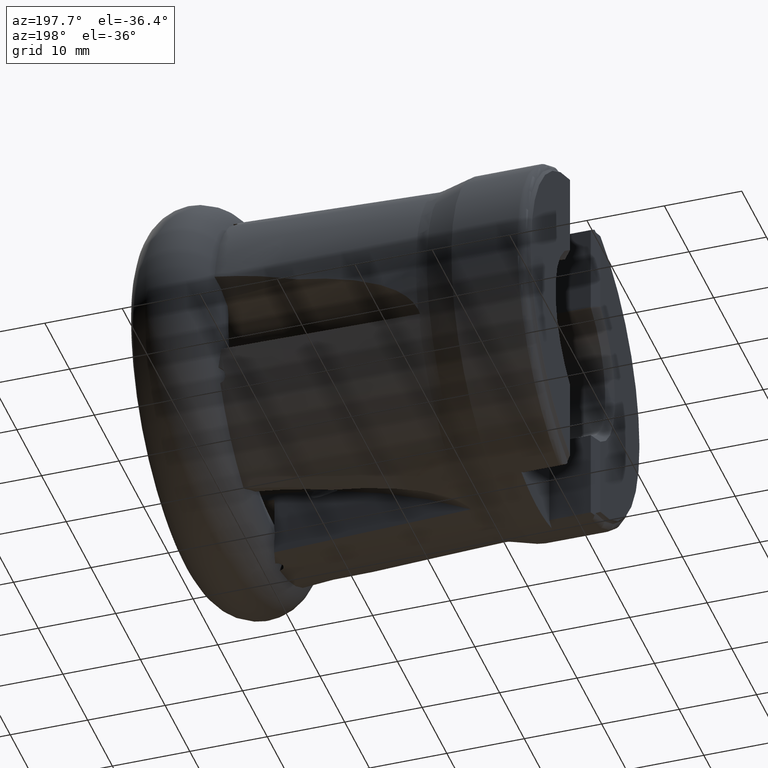
[diagram: clean part render]
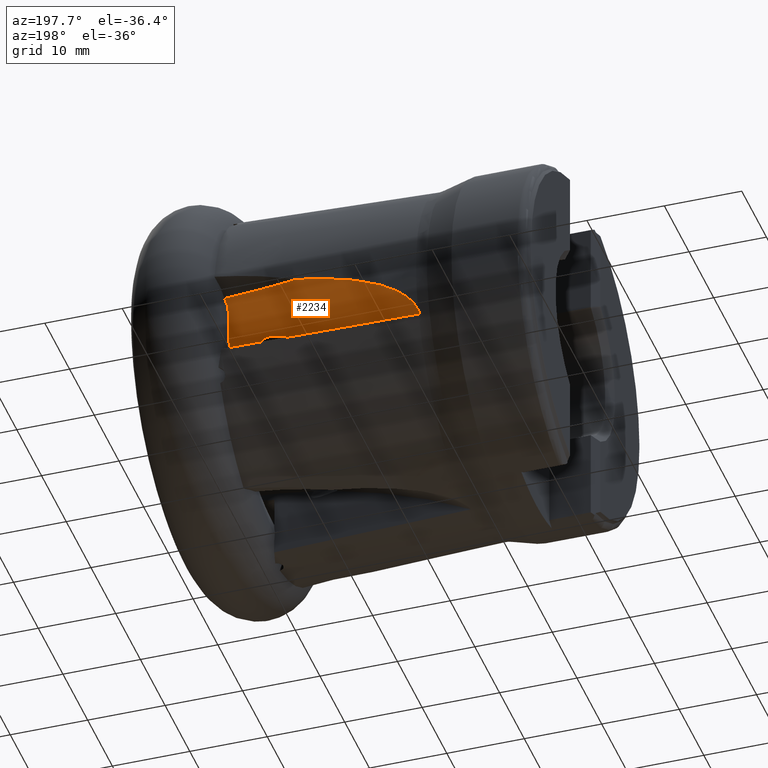
[diagram: same view with one face highlighted and labeled with its STEP entity id]
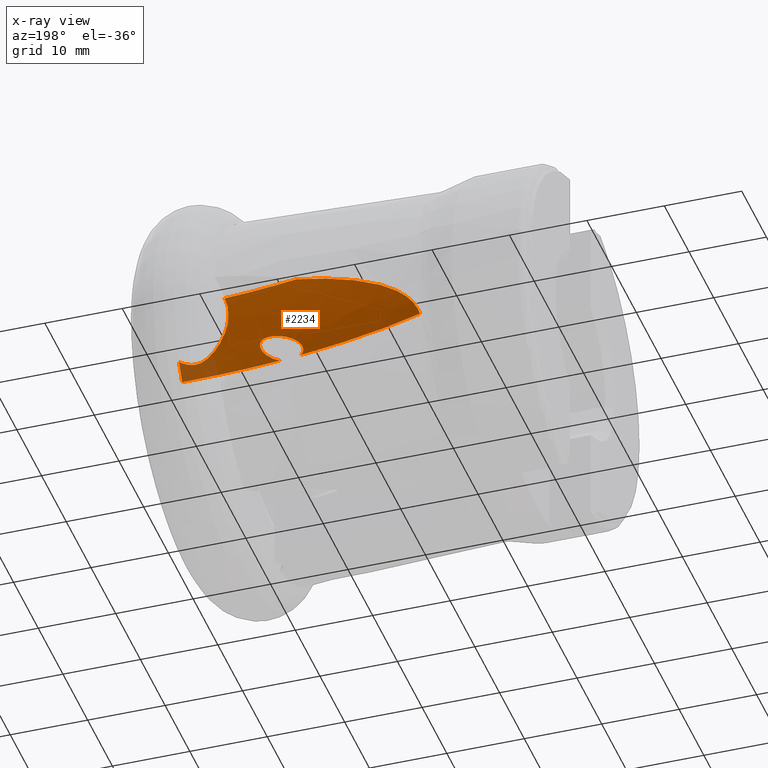
[diagram: x-ray of the same camera — body ghosted, the highlighted face saturated]
A machine part, auxiliary view. The second image highlights one B-rep face of the part: STEP entity #2234.
The next image is the same camera in x-ray: the body ghosted, the highlighted face saturated — about 5% of this face is hidden behind the body in this view.
In plain terms, the highlighted face is a freeform B-spline surface patch.
Its self-contained STEP definition (entity closure, byte-faithful):
#57 = CARTESIAN_POINT ( 'NONE',  ( -10.67007373565100000, 19.98910982754507900, 1.701410772171525500 ) ) ;
#67 = CARTESIAN_POINT ( 'NONE',  ( -35.45456745648343100, 21.29226190142590300, -5.208413239256000100 ) ) ;
#70 = CARTESIAN_POINT ( 'NONE',  ( -35.01043176952922000, 24.65249547855372100, -1.247400818912317600 ) ) ;
#76 = CARTESIAN_POINT ( 'NONE',  ( -10.61263477070060400, 20.52451081914086800, 1.808598483821061100 ) ) ;
#98 = CIRCLE ( 'NONE', #299, 66.95920184201828800 ) ;
#99 = CARTESIAN_POINT ( 'NONE',  ( -2.294855702049722400, 20.13733992812004900, 1.934397932121777000 ) ) ;
#113 = CARTESIAN_POINT ( 'NONE',  ( -16.94207837571960000, 15.61148404056344500, -2.006880949615248400 ) ) ;
#128 = CARTESIAN_POINT ( 'NONE',  ( -13.24486891621791100, 19.94529112346302900, 1.996798371392830300 ) ) ;
#131 = CARTESIAN_POINT ( 'NONE',  ( -13.43528544466133900, 14.99059599604103500, -1.840202598969330200 ) ) ;
#157 = CARTESIAN_POINT ( 'NONE',  ( -35.63093086630230700, 21.20886142417053600, -5.516403857878856300 ) ) ;
#222 = CARTESIAN_POINT ( 'NONE',  ( -2.483685759257711700, 12.89898074285816200, -3.886208859654658000 ) ) ;
#244 = VERTEX_POINT ( 'NONE', #861 ) ;
#299 = AXIS2_PLACEMENT_3D ( 'NONE', #4890, #4896, #4902 ) ;
#415 = B_SPLINE_CURVE_WITH_KNOTS ( 'NONE', 3,
 ( #3560, #3616, #3347, #3365 ),
 .UNSPECIFIED., .F., .F.,
 ( 4, 4 ),
 ( 4.336808689942017700E-019, 0.002535682516832130100 ),
 .UNSPECIFIED. ) ;
#438 = CARTESIAN_POINT ( 'NONE',  ( -15.71470477606490900, 13.97244937755415300, -4.234999962355638900 ) ) ;
#452 = CARTESIAN_POINT ( 'NONE',  ( -32.25690373819281100, 21.90576804327069000, -2.339785934406215100 ) ) ;
#482 = EDGE_CURVE ( 'NONE', #637, #1880, #2284, .T. ) ;
#497 = CARTESIAN_POINT ( 'NONE',  ( -17.97723554452310100, 15.46299320940926800, -2.545216703589392900 ) ) ;
#507 = CARTESIAN_POINT ( 'NONE',  ( -13.96482074167198400, 15.34781528938819200, -1.538061025068852900 ) ) ;
#637 = VERTEX_POINT ( 'NONE', #3209 ) ;
#688 = EDGE_CURVE ( 'NONE', #244, #824, #2191, .T. ) ;
#808 = CARTESIAN_POINT ( 'NONE',  ( -27.60267428762364300, 22.19046200048281400, -0.3420937926960605500 ) ) ;
#816 = CARTESIAN_POINT ( 'NONE',  ( -14.28615549429026300, 14.09191446535606900, -3.420416888686507800 ) ) ;
#824 = VERTEX_POINT ( 'NONE', #3171 ) ;
#853 = CARTESIAN_POINT ( 'NONE',  ( -32.57035810515052500, 21.87395444207135500, -2.528645976481762100 ) ) ;
#861 = CARTESIAN_POINT ( 'NONE',  ( -15.71470477606490900, 13.97244937755415300, -4.234999962355638900 ) ) ;
#866 = CARTESIAN_POINT ( 'NONE',  ( -18.43953404367519500, 15.34025000464639600, -2.898242365660210800 ) ) ;
#878 = CARTESIAN_POINT ( 'NONE',  ( -16.04333051825046800, 15.64170299876388800, -1.716189478441777900 ) ) ;
#1065 = CARTESIAN_POINT ( 'NONE',  ( -20.49648691346577300, 22.40840203661655700, 1.196485121702988600 ) ) ;
#1096 = CARTESIAN_POINT ( 'NONE',  ( -2.692034791123087500, 14.19776985816529400, -1.703903329132488300 ) ) ;
#1099 = CARTESIAN_POINT ( 'NONE',  ( -34.04904509011237200, 21.68126116710615700, -3.571649673112335500 ) ) ;
#1139 = CARTESIAN_POINT ( 'NONE',  ( -23.37206174434269500, 22.33016160396562500, 0.7358011302123138600 ) ) ;
#1185 = CARTESIAN_POINT ( 'NONE',  ( -31.29727425323967800, 21.98868589399752000, -1.818080117048803200 ) ) ;
#1229 = CARTESIAN_POINT ( 'NONE',  ( -13.37292321132269600, 14.69451746052368100, -2.208757829550291400 ) ) ;
#1247 = CARTESIAN_POINT ( 'NONE',  ( -18.65638965557450700, 14.58551028699077000, -4.366514296867134000 ) ) ;
#1259 = AXIS2_PLACEMENT_3D ( 'NONE', #1635, #2154, #2165 ) ;
#1264 = CARTESIAN_POINT ( 'NONE',  ( -15.35114430668906300, 15.61856583336820000, -1.562236835625270500 ) ) ;
#1285 = ORIENTED_EDGE ( 'NONE', *, *, #2876, .F. ) ;
#1307 = CARTESIAN_POINT ( 'NONE',  ( -35.97935803596486400, 20.91984969040916600, -6.492347161616975400 ) ) ;
#1311 = B_SPLINE_CURVE_WITH_KNOTS ( 'NONE', 3,
 ( #2717, #2765, #2693, #2705 ),
 .UNSPECIFIED., .F., .F.,
 ( 4, 4 ),
 ( 4.025381719455677700E-015, 0.0007055129496290877600 ),
 .UNSPECIFIED. ) ;
#1315 = CIRCLE ( 'NONE', #1467, 66.95920184201828800 ) ;
#1467 = AXIS2_PLACEMENT_3D ( 'NONE', #4390, #4052, #3096 ) ;
#1477 = CARTESIAN_POINT ( 'NONE',  ( -29.64938854091343500, 22.09630554604246600, -1.068679078862027700 ) ) ;
#1554 = CARTESIAN_POINT ( 'NONE',  ( -35.98897988971378200, 22.30784463072495400, -3.434730040015045600 ) ) ;
#1607 = CARTESIAN_POINT ( 'NONE',  ( -23.87236382868438500, 22.46153538040661600, 1.179221051778894400 ) ) ;
#1614 = CARTESIAN_POINT ( 'NONE',  ( -25.69798585746761400, 16.82815741043855300, -1.654271732948179800 ) ) ;
#1630 = VERTEX_POINT ( 'NONE', #1307 ) ;
#1633 = CARTESIAN_POINT ( 'NONE',  ( -13.39303664664853800, 14.91446834164627500, -1.925268917478025300 ) ) ;
#1635 = CARTESIAN_POINT ( 'NONE',  ( -3.435761457491776300, 78.97636348938183900, -17.18355973004496200 ) ) ;
#1650 = CARTESIAN_POINT ( 'NONE',  ( -18.88642840795923700, 14.74788075032202900, -4.143180652740823300 ) ) ;
#1666 = CARTESIAN_POINT ( 'NONE',  ( -18.92172504221711900, 15.08117077927501300, -3.524983282219456000 ) ) ;
#1753 = VERTEX_POINT ( 'NONE', #4784 ) ;
#1774 = EDGE_CURVE ( 'NONE', #244, #1753, #98, .T. ) ;
#1880 = VERTEX_POINT ( 'NONE', #4414 ) ;
#1935 = CARTESIAN_POINT ( 'NONE',  ( -18.98302296235067400, 14.92342446574949500, -3.843284569306470100 ) ) ;
#1940 = CARTESIAN_POINT ( 'NONE',  ( -35.04521419876763100, 21.44103581040390300, -4.625668051914684200 ) ) ;
#2029 = CARTESIAN_POINT ( 'NONE',  ( -14.30170265120462900, 15.45562743309457300, -1.493249190489593000 ) ) ;
#2045 = CARTESIAN_POINT ( 'NONE',  ( -18.87291383584807700, 15.12727060997326800, -3.422880469805859700 ) ) ;
#2047 = VERTEX_POINT ( 'NONE', #1096 ) ;
#2062 = CARTESIAN_POINT ( 'NONE',  ( -35.76786732149802400, 21.11223590058184000, -5.847360537012748200 ) ) ;
#2154 = DIRECTION ( 'NONE',  ( -0.0000000000000000000, 0.3090169943749582200, 0.9510565162951500900 ) ) ;
#2165 = DIRECTION ( 'NONE',  ( 0.0000000000000000000, -0.9510565162951502000, 0.3090169943749582200 ) ) ;
#2191 = B_SPLINE_CURVE_WITH_KNOTS ( 'NONE', 3,
 ( #438, #3129, #3641, #816, #3165, #2649, #2289, #2654, #4054, #1229, #2237, #1633, #131, #2445, #4864, #3258, #507, #2857, #2029, #4465, #4847, #1264, #3673, #878, #2435, #113, #2840, #497, #3240, #866, #3827, #4875, #2463, #2045, #1666, #4501, #1935, #3655, #1650, #4077, #1247, #4487 ),
 .UNSPECIFIED., .F., .F.,
 ( 4, 2, 2, 2, 2, 2, 2, 2, 2, 2, 2, 2, 2, 2, 2, 2, 2, 2, 2, 2, 4 ),
 ( 2.385055529399355600E-016, 0.001413186772562258000, 0.002119780158843265300, 0.002826373545124272600, 0.003179670238264776700, 0.003532966931405280800, 0.003886263624545785400, 0.004239560317686289500, 0.004592857010826794000, 0.004946153703967297700, 0.005652747090248306700, 0.006359340476529314900, 0.007065933862810317900, 0.008479120635372334300, 0.009185714021653338200, 0.009539010714793841000, 0.009892307407934342000, 0.01024560410107484500, 0.01059890079421534800, 0.01095219748735585000, 0.01130549418049635300 ),
 .UNSPECIFIED. ) ;
#2234 = ADVANCED_FACE ( 'NONE', ( #3142 ), #3383, .F. ) ;
#2237 = CARTESIAN_POINT ( 'NONE',  ( -13.36214362728566500, 14.76570185667875500, -2.110547470221923100 ) ) ;
#2269 = EDGE_CURVE ( 'NONE', #1880, #2879, #3206, .T. ) ;
#2284 = B_SPLINE_CURVE_WITH_KNOTS ( 'NONE', 3,
 ( #2062, #157, #67, #1940, #3612, #1099, #4321, #853, #452, #4313, #1185, #2752, #1477, #3864, #808, #4357, #2393, #1139, #2333, #1065 ),
 .UNSPECIFIED., .F., .F.,
 ( 4, 2, 2, 2, 2, 2, 2, 2, 2, 4 ),
 ( 2.527284333949779600E-017, 0.001091006530052902200, 0.002182013060105778900, 0.004364026120211532600, 0.005455032650264417200, 0.006546039180317301900, 0.008728052240423072100, 0.01091006530052884100, 0.01309207836063461100, 0.01745610448084614800 ),
 .UNSPECIFIED. ) ;
#2289 = CARTESIAN_POINT ( 'NONE',  ( -13.63481252317409600, 14.35121638961263100, -2.775512866753942800 ) ) ;
#2333 = CARTESIAN_POINT ( 'NONE',  ( -21.93910815666827900, 22.36893677903250200, 0.9907719811105002400 ) ) ;
#2393 = CARTESIAN_POINT ( 'NONE',  ( -25.50012427023653700, 22.26483100298792600, 0.2457613038227436900 ) ) ;
#2435 = CARTESIAN_POINT ( 'NONE',  ( -16.27247299321162200, 15.63894238632204300, -1.782136090891898400 ) ) ;
#2445 = CARTESIAN_POINT ( 'NONE',  ( -13.56972744729801200, 15.13213516838648300, -1.699138029156184400 ) ) ;
#2463 = CARTESIAN_POINT ( 'NONE',  ( -18.75229772096232800, 15.20930696431320200, -3.232441048513100300 ) ) ;
#2541 = EDGE_LOOP ( 'NONE', ( #3646, #4389, #4940, #3619, #3422, #1285, #3044, #2920 ) ) ;
#2647 = EDGE_CURVE ( 'NONE', #2879, #2047, #3425, .T. ) ;
#2649 = CARTESIAN_POINT ( 'NONE',  ( -13.78082408125795600, 14.27010365832534000, -2.949014452198326800 ) ) ;
#2654 = CARTESIAN_POINT ( 'NONE',  ( -13.47275469029868200, 14.50741220208368500, -2.498076434741504300 ) ) ;
#2685 = CARTESIAN_POINT ( 'NONE',  ( -5.535427720752156900, 13.85823900998550500, -2.210389947663598000 ) ) ;
#2693 = CARTESIAN_POINT ( 'NONE',  ( -35.85491274374812300, 21.05081464143728500, -6.057737414671252400 ) ) ;
#2705 = CARTESIAN_POINT ( 'NONE',  ( -35.76786732149802400, 21.11223590058184000, -5.847360537012748200 ) ) ;
#2716 = CARTESIAN_POINT ( 'NONE',  ( -3.155686299804160400, 14.02394867321673500, -1.924692595217037900 ) ) ;
#2717 = CARTESIAN_POINT ( 'NONE',  ( -35.97935803596486400, 20.91984969040916600, -6.492347161616975400 ) ) ;
#2752 = CARTESIAN_POINT ( 'NONE',  ( -30.31737631780992000, 22.05858231952499100, -1.346531077639514300 ) ) ;
#2765 = CARTESIAN_POINT ( 'NONE',  ( -35.92735432220303700, 20.98770618866916800, -6.272399628596792500 ) ) ;
#2808 = CARTESIAN_POINT ( 'NONE',  ( -3.652868950317749600, 13.89121414821176400, -2.107967189375131100 ) ) ;
#2840 = CARTESIAN_POINT ( 'NONE',  ( -17.37114031133259200, 15.56927099929569100, -2.191425743877061900 ) ) ;
#2857 = CARTESIAN_POINT ( 'NONE',  ( -14.18776078098248500, 15.42430080524711000, -1.502240708398724400 ) ) ;
#2876 = EDGE_CURVE ( 'NONE', #1630, #824, #1315, .T. ) ;
#2879 = VERTEX_POINT ( 'NONE', #4633 ) ;
#2890 = CARTESIAN_POINT ( 'NONE',  ( -9.661471552342378600, 16.66858929989929500, 0.2690811232664127000 ) ) ;
#2920 = ORIENTED_EDGE ( 'NONE', *, *, #482, .T. ) ;
#2937 = CARTESIAN_POINT ( 'NONE',  ( -33.44961434866214500, 27.51377089013763600, -0.4623497753400759300 ) ) ;
#3044 = ORIENTED_EDGE ( 'NONE', *, *, #4826, .T. ) ;
#3057 = CARTESIAN_POINT ( 'NONE',  ( -8.023715732541656800, 14.95882929104672200, -1.028815607685462400 ) ) ;
#3079 = CARTESIAN_POINT ( 'NONE',  ( -9.524611440161702800, 16.47169407871723500, 0.1429795096661025900 ) ) ;
#3096 = DIRECTION ( 'NONE',  ( 0.0000000000000000000, -0.9510565162951502000, 0.3090169943749582200 ) ) ;
#3115 = CARTESIAN_POINT ( 'NONE',  ( -9.085754951860213400, 15.90898912143156200, -0.2402477948232659100 ) ) ;
#3129 = CARTESIAN_POINT ( 'NONE',  ( -15.27246199966759800, 13.96069537605536200, -4.056990624303422200 ) ) ;
#3142 = FACE_OUTER_BOUND ( 'NONE', #2541, .T. ) ;
#3165 = CARTESIAN_POINT ( 'NONE',  ( -14.10574541889693700, 14.14047660835590700, -3.271184652931513600 ) ) ;
#3171 = CARTESIAN_POINT ( 'NONE',  ( -18.55849438059680500, 14.53795182532236700, -4.418742845903458300 ) ) ;
#3206 = CIRCLE ( 'NONE', #1259, 61.87752956249888600 ) ;
#3209 = CARTESIAN_POINT ( 'NONE',  ( -35.76786732149802400, 21.11223590058184000, -5.847360537012748200 ) ) ;
#3240 = CARTESIAN_POINT ( 'NONE',  ( -18.17373436980239600, 15.41974192093409200, -2.677383031427490700 ) ) ;
#3258 = CARTESIAN_POINT ( 'NONE',  ( -13.85610212034663200, 15.30259575604737600, -1.565002651945048000 ) ) ;
#3311 = CARTESIAN_POINT ( 'NONE',  ( -2.692034791123087500, 14.19776985816529400, -1.703903329132488300 ) ) ;
#3330 = CARTESIAN_POINT ( 'NONE',  ( -10.23235801599992100, 17.74837349050159900, 0.8679083734483151700 ) ) ;
#3346 = CARTESIAN_POINT ( 'NONE',  ( -6.984914691592720700, 14.34841600137286800, -1.648279213474407100 ) ) ;
#3347 = CARTESIAN_POINT ( 'NONE',  ( -2.692034791123087500, 13.67495550259674900, -2.370528913168558300 ) ) ;
#3365 = CARTESIAN_POINT ( 'NONE',  ( -2.692034791123087500, 14.19776985816529400, -1.703903329132488300 ) ) ;
#3383 =( BOUNDED_SURFACE ( )  B_SPLINE_SURFACE ( 3, 3, ( 
 ( #2937, #1607, #128, #99 ),
 ( #70, #3854, #3841, #3831 ),
 ( #1554, #1614, #3894, #3901 ),
 ( #3858, #3866, #3874, #222 ) ),
 .UNSPECIFIED., .F., .F., .F. ) 
 B_SPLINE_SURFACE_WITH_KNOTS ( ( 4, 4 ),
 ( 4, 4 ),
 ( 0.0000000000000000000, 1.000000000000000000 ),
 ( 0.0000000000000000000, 1.000000000000000000 ),
 .UNSPECIFIED. ) 
 GEOMETRIC_REPRESENTATION_ITEM ( )  RATIONAL_B_SPLINE_SURFACE ( (
 ( 1.000000000000000000, 0.9771747372646481000, 0.9771747372646481000, 1.000000000000000000),
 ( 0.9237108360006762700, 0.9026268934774692700, 0.9026268934774692700, 0.9237108360006762700),
 ( 0.9237108360006762700, 0.9026268934774692700, 0.9026268934774692700, 0.9237108360006762700),
 ( 1.000000000000000000, 0.9771747372646481000, 0.9771747372646481000, 1.000000000000000000) ) ) 
 REPRESENTATION_ITEM ( '' )  SURFACE ( )  );
#3410 = CARTESIAN_POINT ( 'NONE',  ( -7.627628369789209600, 14.69028488883905900, -1.289110642550762400 ) ) ;
#3420 = CARTESIAN_POINT ( 'NONE',  ( -9.914423920046550300, 17.08360932817185700, 0.5167220802441481200 ) ) ;
#3422 = ORIENTED_EDGE ( 'NONE', *, *, #688, .T. ) ;
#3425 = B_SPLINE_CURVE_WITH_KNOTS ( 'NONE', 3,
 ( #76, #57, #3677, #4673, #3537, #4664, #3330, #4291, #3420, #2890, #3079, #3115, #4095, #3057, #3410, #3346, #4732, #3559, #3447, #2685, #4327, #4660, #4211, #4183, #2808, #2716, #4552, #3311 ),
 .UNSPECIFIED., .F., .F.,
 ( 4, 2, 2, 2, 2, 2, 2, 2, 2, 2, 2, 2, 2, 4 ),
 ( 3.786955383950529800E-018, 0.001620414546306590800, 0.002430621819459879300, 0.003240829092613168200, 0.004051036365766455400, 0.004861243638919744700, 0.006481658185226321600, 0.008102072731532895100, 0.008912280004686181900, 0.009722487277839468600, 0.01053269455099275500, 0.01134290182414604000, 0.01215310909729932700, 0.01296331637045261400 ),
 .UNSPECIFIED. ) ;
#3447 = CARTESIAN_POINT ( 'NONE',  ( -6.046239283153373600, 13.98088502797239500, -2.065948263250762200 ) ) ;
#3537 = CARTESIAN_POINT ( 'NONE',  ( -10.46742946382323700, 18.45951666066104100, 1.186581867465693200 ) ) ;
#3559 = CARTESIAN_POINT ( 'NONE',  ( -6.291170920762697300, 14.06001549164087400, -1.972490269233661000 ) ) ;
#3560 = CARTESIAN_POINT ( 'NONE',  ( -2.692034791123084900, 12.89647135303051300, -3.885393509474119900 ) ) ;
#3612 = CARTESIAN_POINT ( 'NONE',  ( -34.81043872863443100, 21.50664734355512300, -4.349575126458054400 ) ) ;
#3616 = CARTESIAN_POINT ( 'NONE',  ( -2.692034791123085700, 13.23983970362844800, -3.096774784518875100 ) ) ;
#3619 = ORIENTED_EDGE ( 'NONE', *, *, #1774, .F. ) ;
#3641 = CARTESIAN_POINT ( 'NONE',  ( -14.85864327598034700, 13.98358966893045600, -3.832852278513943400 ) ) ;
#3646 = ORIENTED_EDGE ( 'NONE', *, *, #2269, .T. ) ;
#3655 = CARTESIAN_POINT ( 'NONE',  ( -18.93773299903140000, 14.80733780132804100, -4.048081953885872300 ) ) ;
#3673 = CARTESIAN_POINT ( 'NONE',  ( -15.58264077701261400, 15.63141232817801700, -1.606369932729228200 ) ) ;
#3677 = CARTESIAN_POINT ( 'NONE',  ( -10.65261904532729900, 19.46910820995778100, 1.555778856763436100 ) ) ;
#3827 = CARTESIAN_POINT ( 'NONE',  ( -18.52371044410820000, 15.31122080242772800, -2.975906162621952500 ) ) ;
#3831 = CARTESIAN_POINT ( 'NONE',  ( -2.403544240407097900, 16.84954084401303100, 1.287932830661888900 ) ) ;
#3841 = CARTESIAN_POINT ( 'NONE',  ( -13.87163545964387600, 16.67578759424464600, 1.344388683796113900 ) ) ;
#3854 = CARTESIAN_POINT ( 'NONE',  ( -24.99447981410628500, 19.33752738242319700, 0.4795370003700684700 ) ) ;
#3858 = CARTESIAN_POINT ( 'NONE',  ( -36.16130085514986100, 21.01643270580483500, -6.523728885640601900 ) ) ;
#3864 = CARTESIAN_POINT ( 'NONE',  ( -28.29208477713000400, 22.16229343091104900, -0.5663459730470128400 ) ) ;
#3866 = CARTESIAN_POINT ( 'NONE',  ( -25.82187229501886700, 15.50773867643583300, -4.733845694977930800 ) ) ;
#3874 = CARTESIAN_POINT ( 'NONE',  ( -14.33378191513993900, 12.73871772471079200, -3.834136248480844300 ) ) ;
#3894 = CARTESIAN_POINT ( 'NONE',  ( -14.26458418936994800, 14.07519979198609800, -0.7597815798185083600 ) ) ;
#3901 = CARTESIAN_POINT ( 'NONE',  ( -2.471686076520207600, 14.23748271818898200, -0.8125104989041387300 ) ) ;
#4052 = DIRECTION ( 'NONE',  ( -0.0000000000000000000, 0.3090169943749582200, 0.9510565162951500900 ) ) ;
#4054 = CARTESIAN_POINT ( 'NONE',  ( -13.42820532218261500, 14.56586081327184900, -2.401884270191633900 ) ) ;
#4077 = CARTESIAN_POINT ( 'NONE',  ( -18.74374499354885500, 14.63618468292831000, -4.303134879685433000 ) ) ;
#4095 = CARTESIAN_POINT ( 'NONE',  ( -8.756093624648212200, 15.57078464673989500, -0.5025095429810856300 ) ) ;
#4183 = CARTESIAN_POINT ( 'NONE',  ( -3.913100234289493200, 13.84036822899906500, -2.183717627860584100 ) ) ;
#4211 = CARTESIAN_POINT ( 'NONE',  ( -4.447136891578710800, 13.78307117604416700, -2.277647406068359800 ) ) ;
#4291 = CARTESIAN_POINT ( 'NONE',  ( -10.02972045565034900, 17.30079106067897500, 0.6375845572378875400 ) ) ;
#4313 = CARTESIAN_POINT ( 'NONE',  ( -31.62019462946763300, 21.96313463591354800, -1.984468067272583000 ) ) ;
#4321 = CARTESIAN_POINT ( 'NONE',  ( -33.47916840977885800, 21.76708099981929900, -3.128062928433111600 ) ) ;
#4326 = EDGE_CURVE ( 'NONE', #1753, #2047, #415, .T. ) ;
#4327 = CARTESIAN_POINT ( 'NONE',  ( -5.265573836487419600, 13.81472703753795600, -2.261038144225026700 ) ) ;
#4357 = CARTESIAN_POINT ( 'NONE',  ( -26.20702351045941100, 22.24174194082994700, 0.06396085196733689000 ) ) ;
#4389 = ORIENTED_EDGE ( 'NONE', *, *, #2647, .T. ) ;
#4390 = CARTESIAN_POINT ( 'NONE',  ( -3.435761457491776300, 76.57452827708442600, -24.57564842194023300 ) ) ;
#4414 = CARTESIAN_POINT ( 'NONE',  ( -20.49648691346577300, 22.40840203661655700, 1.196485121702988600 ) ) ;
#4465 = CARTESIAN_POINT ( 'NONE',  ( -14.64843822682382600, 15.53585584807199800, -1.483938156692545400 ) ) ;
#4487 = CARTESIAN_POINT ( 'NONE',  ( -18.55849438059680500, 14.53795182532236700, -4.418742845903458300 ) ) ;
#4501 = CARTESIAN_POINT ( 'NONE',  ( -18.97693933071070700, 14.98004297482535900, -3.733728506795788600 ) ) ;
#4552 = CARTESIAN_POINT ( 'NONE',  ( -2.919761862556676100, 14.10504862498533300, -1.818247662066792900 ) ) ;
#4633 = CARTESIAN_POINT ( 'NONE',  ( -10.61263477070060400, 20.52451081914086800, 1.808598483821061100 ) ) ;
#4660 = CARTESIAN_POINT ( 'NONE',  ( -4.724806424815892700, 13.77719448130705400, -2.294811068890397500 ) ) ;
#4664 = CARTESIAN_POINT ( 'NONE',  ( -10.32036140132360600, 17.97979640717880300, 0.9780035194929684900 ) ) ;
#4673 = CARTESIAN_POINT ( 'NONE',  ( -10.52670583684735700, 18.70974332003314400, 1.285689152122928300 ) ) ;
#4732 = CARTESIAN_POINT ( 'NONE',  ( -6.762001693098421000, 14.24442662848185700, -1.762932827817955900 ) ) ;
#4784 = CARTESIAN_POINT ( 'NONE',  ( -2.692034791123084900, 12.89647135303051300, -3.885393509474119900 ) ) ;
#4826 = EDGE_CURVE ( 'NONE', #1630, #637, #1311, .T. ) ;
#4847 = CARTESIAN_POINT ( 'NONE',  ( -14.88542918439563100, 15.57086552097410200, -1.501283677337369400 ) ) ;
#4864 = CARTESIAN_POINT ( 'NONE',  ( -13.65918966451776800, 15.19533521615682400, -1.645015473448988100 ) ) ;
#4875 = CARTESIAN_POINT ( 'NONE',  ( -18.67970183854993800, 15.24595900209224700, -3.142487428768566500 ) ) ;
#4890 = CARTESIAN_POINT ( 'NONE',  ( -3.435761457491776300, 76.57452827708442600, -24.57564842194023300 ) ) ;
#4896 = DIRECTION ( 'NONE',  ( -0.0000000000000000000, 0.3090169943749582200, 0.9510565162951500900 ) ) ;
#4902 = DIRECTION ( 'NONE',  ( 0.0000000000000000000, -0.9510565162951502000, 0.3090169943749582200 ) ) ;
#4940 = ORIENTED_EDGE ( 'NONE', *, *, #4326, .F. ) ;